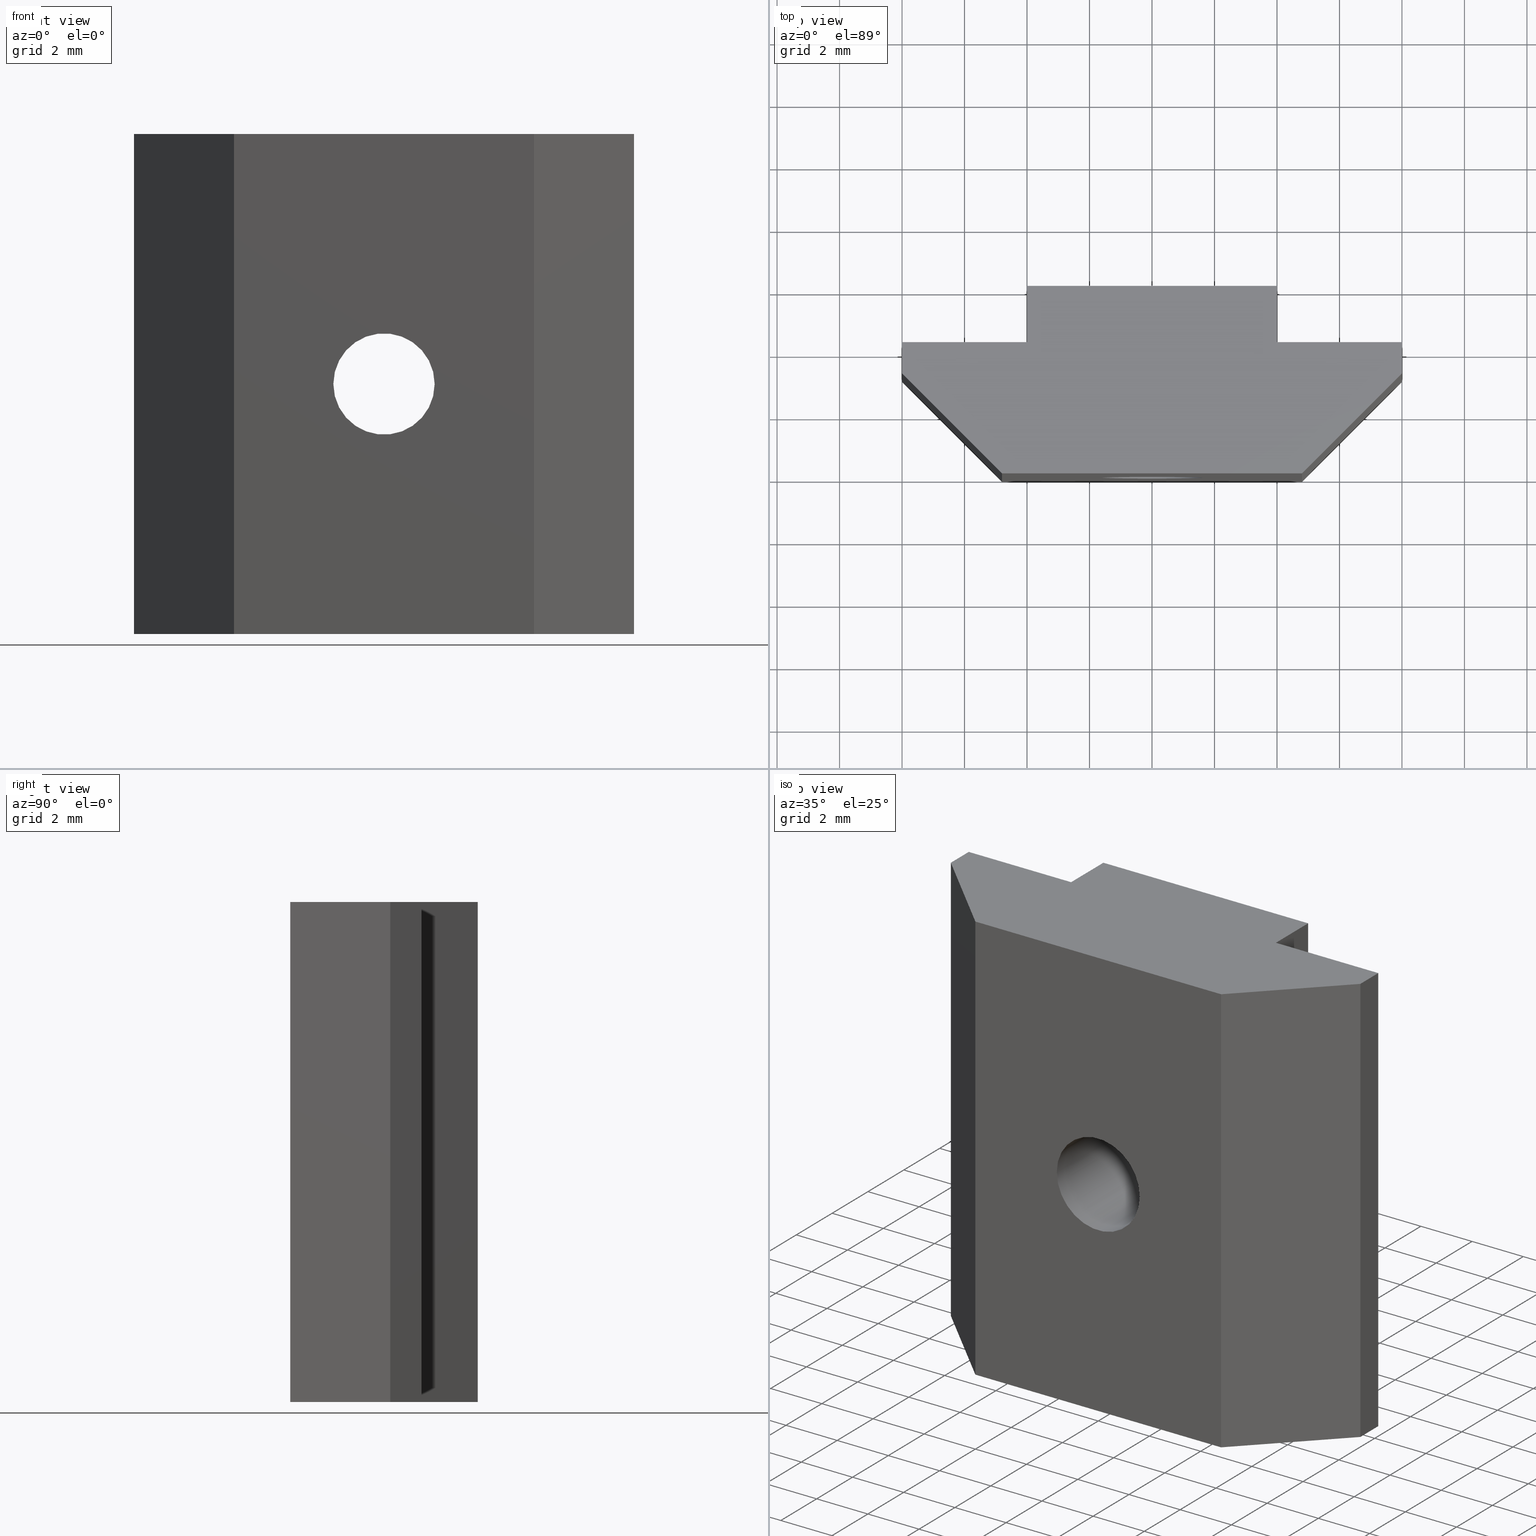
[diagram: canonical four-view strip — front | top / right | iso, engineering-drawing reading convention]
A machine part, canonical four-view strip (front | top / right | iso — engineering-drawing reading convention). The complete STEP part file that produces these views, byte-faithful:
ISO-10303-21;
HEADER;
/* Generated by software containing ST-Developer
 * from STEP Tools, Inc. (www.steptools.com) 
 */

FILE_DESCRIPTION(
/* description */ ('CURSORE M6 16X16 CAVA8 CON RISALTO'),
/* implementation_level */ '2;1');

FILE_NAME(
/* name */ 
'Q:\\Catalogo\\2_Accessori Dierre\\Per Download Web e catalogo cartace
o\\CATALOGO ELEMENTI ASSEMBLAGGIO\\PAGINA 12\\DDDCU0000092.stp',
/* time_stamp */ '2018-03-27T09:06:13+02:00',
/* author */ ('fzagni'),
/* organization */ (''),
/* preprocessor_version */ 'ST-DEVELOPER v16.1',
/* originating_system */ 'Autodesk Inventor 2016',
/* authorisation */ '');

FILE_SCHEMA (('AUTOMOTIVE_DESIGN { 1 0 10303 214 3 1 1 }'));
ENDSEC;

DATA;
#10=MECHANICAL_DESIGN_GEOMETRIC_PRESENTATION_REPRESENTATION('',(#13),#403);
#11=SHAPE_REPRESENTATION_RELATIONSHIP('SRR','None',#412,#12);
#12=ADVANCED_BREP_SHAPE_REPRESENTATION('',(#14),#402);
#13=STYLED_ITEM('',(#421),#14);
#14=MANIFOLD_SOLID_BREP('Solido1',#253);
#15=LINE('',#341,#45);
#16=LINE('',#343,#46);
#17=LINE('',#345,#47);
#18=LINE('',#346,#48);
#19=LINE('',#349,#49);
#20=LINE('',#351,#50);
#21=LINE('',#352,#51);
#22=LINE('',#355,#52);
#23=LINE('',#357,#53);
#24=LINE('',#358,#54);
#25=LINE('',#361,#55);
#26=LINE('',#363,#56);
#27=LINE('',#364,#57);
#28=LINE('',#367,#58);
#29=LINE('',#369,#59);
#30=LINE('',#370,#60);
#31=LINE('',#373,#61);
#32=LINE('',#375,#62);
#33=LINE('',#376,#63);
#34=LINE('',#379,#64);
#35=LINE('',#381,#65);
#36=LINE('',#382,#66);
#37=LINE('',#385,#67);
#38=LINE('',#387,#68);
#39=LINE('',#388,#69);
#40=LINE('',#391,#70);
#41=LINE('',#393,#71);
#42=LINE('',#394,#72);
#43=LINE('',#396,#73);
#44=LINE('',#397,#74);
#45=VECTOR('',#280,1.8);
#46=VECTOR('',#281,16.);
#47=VECTOR('',#282,1.8);
#48=VECTOR('',#283,16.);
#49=VECTOR('',#286,4.);
#50=VECTOR('',#287,4.);
#51=VECTOR('',#288,16.);
#52=VECTOR('',#291,0.999999999999998);
#53=VECTOR('',#292,0.999999999999998);
#54=VECTOR('',#293,16.);
#55=VECTOR('',#296,4.52548339959391);
#56=VECTOR('',#297,4.52548339959391);
#57=VECTOR('',#298,16.);
#58=VECTOR('',#301,9.6);
#59=VECTOR('',#302,9.6);
#60=VECTOR('',#303,16.);
#61=VECTOR('',#306,4.52548339959391);
#62=VECTOR('',#307,4.52548339959391);
#63=VECTOR('',#308,16.);
#64=VECTOR('',#311,1.);
#65=VECTOR('',#312,1.);
#66=VECTOR('',#313,16.);
#67=VECTOR('',#316,4.);
#68=VECTOR('',#317,4.);
#69=VECTOR('',#318,16.);
#70=VECTOR('',#321,1.8);
#71=VECTOR('',#322,1.8);
#72=VECTOR('',#323,16.);
#73=VECTOR('',#326,8.);
#74=VECTOR('',#327,8.);
#75=PLANE('',#258);
#76=PLANE('',#259);
#77=PLANE('',#260);
#78=PLANE('',#261);
#79=PLANE('',#262);
#80=PLANE('',#263);
#81=PLANE('',#264);
#82=PLANE('',#265);
#83=PLANE('',#266);
#84=PLANE('',#267);
#85=PLANE('',#268);
#86=PLANE('',#269);
#87=FACE_BOUND('',#104,.T.);
#88=FACE_BOUND('',#110,.T.);
#89=FACE_BOUND('',#116,.T.);
#90=FACE_OUTER_BOUND('',#103,.T.);
#91=FACE_OUTER_BOUND('',#105,.T.);
#92=FACE_OUTER_BOUND('',#106,.T.);
#93=FACE_OUTER_BOUND('',#107,.T.);
#94=FACE_OUTER_BOUND('',#108,.T.);
#95=FACE_OUTER_BOUND('',#109,.T.);
#96=FACE_OUTER_BOUND('',#111,.T.);
#97=FACE_OUTER_BOUND('',#112,.T.);
#98=FACE_OUTER_BOUND('',#113,.T.);
#99=FACE_OUTER_BOUND('',#114,.T.);
#100=FACE_OUTER_BOUND('',#115,.T.);
#101=FACE_OUTER_BOUND('',#117,.T.);
#102=FACE_OUTER_BOUND('',#118,.T.);
#103=EDGE_LOOP('',(#175));
#104=EDGE_LOOP('',(#176));
#105=EDGE_LOOP('',(#177,#178,#179,#180));
#106=EDGE_LOOP('',(#181,#182,#183,#184));
#107=EDGE_LOOP('',(#185,#186,#187,#188));
#108=EDGE_LOOP('',(#189,#190,#191,#192));
#109=EDGE_LOOP('',(#193,#194,#195,#196));
#110=EDGE_LOOP('',(#197));
#111=EDGE_LOOP('',(#198,#199,#200,#201));
#112=EDGE_LOOP('',(#202,#203,#204,#205));
#113=EDGE_LOOP('',(#206,#207,#208,#209));
#114=EDGE_LOOP('',(#210,#211,#212,#213));
#115=EDGE_LOOP('',(#214,#215,#216,#217));
#116=EDGE_LOOP('',(#218));
#117=EDGE_LOOP('',(#219,#220,#221,#222,#223,#224,#225,#226,#227,#228));
#118=EDGE_LOOP('',(#229,#230,#231,#232,#233,#234,#235,#236,#237,#238));
#119=CIRCLE('',#256,1.621);
#120=CIRCLE('',#257,1.621);
#121=VERTEX_POINT('',#334);
#122=VERTEX_POINT('',#336);
#123=VERTEX_POINT('',#339);
#124=VERTEX_POINT('',#340);
#125=VERTEX_POINT('',#342);
#126=VERTEX_POINT('',#344);
#127=VERTEX_POINT('',#348);
#128=VERTEX_POINT('',#350);
#129=VERTEX_POINT('',#354);
#130=VERTEX_POINT('',#356);
#131=VERTEX_POINT('',#360);
#132=VERTEX_POINT('',#362);
#133=VERTEX_POINT('',#366);
#134=VERTEX_POINT('',#368);
#135=VERTEX_POINT('',#372);
#136=VERTEX_POINT('',#374);
#137=VERTEX_POINT('',#378);
#138=VERTEX_POINT('',#380);
#139=VERTEX_POINT('',#384);
#140=VERTEX_POINT('',#386);
#141=VERTEX_POINT('',#390);
#142=VERTEX_POINT('',#392);
#143=EDGE_CURVE('',#121,#121,#119,.T.);
#144=EDGE_CURVE('',#122,#122,#120,.T.);
#145=EDGE_CURVE('',#123,#124,#15,.T.);
#146=EDGE_CURVE('',#123,#125,#16,.T.);
#147=EDGE_CURVE('',#126,#125,#17,.T.);
#148=EDGE_CURVE('',#124,#126,#18,.T.);
#149=EDGE_CURVE('',#124,#127,#19,.T.);
#150=EDGE_CURVE('',#128,#126,#20,.T.);
#151=EDGE_CURVE('',#127,#128,#21,.T.);
#152=EDGE_CURVE('',#127,#129,#22,.T.);
#153=EDGE_CURVE('',#130,#128,#23,.T.);
#154=EDGE_CURVE('',#129,#130,#24,.T.);
#155=EDGE_CURVE('',#129,#131,#25,.T.);
#156=EDGE_CURVE('',#132,#130,#26,.T.);
#157=EDGE_CURVE('',#131,#132,#27,.T.);
#158=EDGE_CURVE('',#131,#133,#28,.T.);
#159=EDGE_CURVE('',#134,#132,#29,.T.);
#160=EDGE_CURVE('',#133,#134,#30,.T.);
#161=EDGE_CURVE('',#133,#135,#31,.T.);
#162=EDGE_CURVE('',#136,#134,#32,.T.);
#163=EDGE_CURVE('',#135,#136,#33,.T.);
#164=EDGE_CURVE('',#135,#137,#34,.T.);
#165=EDGE_CURVE('',#138,#136,#35,.T.);
#166=EDGE_CURVE('',#137,#138,#36,.T.);
#167=EDGE_CURVE('',#137,#139,#37,.T.);
#168=EDGE_CURVE('',#140,#138,#38,.T.);
#169=EDGE_CURVE('',#139,#140,#39,.T.);
#170=EDGE_CURVE('',#139,#141,#40,.T.);
#171=EDGE_CURVE('',#142,#140,#41,.T.);
#172=EDGE_CURVE('',#141,#142,#42,.T.);
#173=EDGE_CURVE('',#141,#123,#43,.T.);
#174=EDGE_CURVE('',#125,#142,#44,.T.);
#175=ORIENTED_EDGE('',*,*,#143,.F.);
#176=ORIENTED_EDGE('',*,*,#144,.F.);
#177=ORIENTED_EDGE('',*,*,#145,.F.);
#178=ORIENTED_EDGE('',*,*,#146,.T.);
#179=ORIENTED_EDGE('',*,*,#147,.F.);
#180=ORIENTED_EDGE('',*,*,#148,.F.);
#181=ORIENTED_EDGE('',*,*,#149,.F.);
#182=ORIENTED_EDGE('',*,*,#148,.T.);
#183=ORIENTED_EDGE('',*,*,#150,.F.);
#184=ORIENTED_EDGE('',*,*,#151,.F.);
#185=ORIENTED_EDGE('',*,*,#152,.F.);
#186=ORIENTED_EDGE('',*,*,#151,.T.);
#187=ORIENTED_EDGE('',*,*,#153,.F.);
#188=ORIENTED_EDGE('',*,*,#154,.F.);
#189=ORIENTED_EDGE('',*,*,#155,.F.);
#190=ORIENTED_EDGE('',*,*,#154,.T.);
#191=ORIENTED_EDGE('',*,*,#156,.F.);
#192=ORIENTED_EDGE('',*,*,#157,.F.);
#193=ORIENTED_EDGE('',*,*,#158,.F.);
#194=ORIENTED_EDGE('',*,*,#157,.T.);
#195=ORIENTED_EDGE('',*,*,#159,.F.);
#196=ORIENTED_EDGE('',*,*,#160,.F.);
#197=ORIENTED_EDGE('',*,*,#143,.T.);
#198=ORIENTED_EDGE('',*,*,#161,.F.);
#199=ORIENTED_EDGE('',*,*,#160,.T.);
#200=ORIENTED_EDGE('',*,*,#162,.F.);
#201=ORIENTED_EDGE('',*,*,#163,.F.);
#202=ORIENTED_EDGE('',*,*,#164,.F.);
#203=ORIENTED_EDGE('',*,*,#163,.T.);
#204=ORIENTED_EDGE('',*,*,#165,.F.);
#205=ORIENTED_EDGE('',*,*,#166,.F.);
#206=ORIENTED_EDGE('',*,*,#167,.F.);
#207=ORIENTED_EDGE('',*,*,#166,.T.);
#208=ORIENTED_EDGE('',*,*,#168,.F.);
#209=ORIENTED_EDGE('',*,*,#169,.F.);
#210=ORIENTED_EDGE('',*,*,#170,.F.);
#211=ORIENTED_EDGE('',*,*,#169,.T.);
#212=ORIENTED_EDGE('',*,*,#171,.F.);
#213=ORIENTED_EDGE('',*,*,#172,.F.);
#214=ORIENTED_EDGE('',*,*,#173,.F.);
#215=ORIENTED_EDGE('',*,*,#172,.T.);
#216=ORIENTED_EDGE('',*,*,#174,.F.);
#217=ORIENTED_EDGE('',*,*,#146,.F.);
#218=ORIENTED_EDGE('',*,*,#144,.T.);
#219=ORIENTED_EDGE('',*,*,#173,.T.);
#220=ORIENTED_EDGE('',*,*,#145,.T.);
#221=ORIENTED_EDGE('',*,*,#149,.T.);
#222=ORIENTED_EDGE('',*,*,#152,.T.);
#223=ORIENTED_EDGE('',*,*,#155,.T.);
#224=ORIENTED_EDGE('',*,*,#158,.T.);
#225=ORIENTED_EDGE('',*,*,#161,.T.);
#226=ORIENTED_EDGE('',*,*,#164,.T.);
#227=ORIENTED_EDGE('',*,*,#167,.T.);
#228=ORIENTED_EDGE('',*,*,#170,.T.);
#229=ORIENTED_EDGE('',*,*,#174,.T.);
#230=ORIENTED_EDGE('',*,*,#171,.T.);
#231=ORIENTED_EDGE('',*,*,#168,.T.);
#232=ORIENTED_EDGE('',*,*,#165,.T.);
#233=ORIENTED_EDGE('',*,*,#162,.T.);
#234=ORIENTED_EDGE('',*,*,#159,.T.);
#235=ORIENTED_EDGE('',*,*,#156,.T.);
#236=ORIENTED_EDGE('',*,*,#153,.T.);
#237=ORIENTED_EDGE('',*,*,#150,.T.);
#238=ORIENTED_EDGE('',*,*,#147,.T.);
#239=CYLINDRICAL_SURFACE('',#255,1.621);
#240=ADVANCED_FACE('',(#90,#87),#239,.F.);
#241=ADVANCED_FACE('',(#91),#75,.T.);
#242=ADVANCED_FACE('',(#92),#76,.T.);
#243=ADVANCED_FACE('',(#93),#77,.T.);
#244=ADVANCED_FACE('',(#94),#78,.T.);
#245=ADVANCED_FACE('',(#95,#88),#79,.T.);
#246=ADVANCED_FACE('',(#96),#80,.T.);
#247=ADVANCED_FACE('',(#97),#81,.T.);
#248=ADVANCED_FACE('',(#98),#82,.T.);
#249=ADVANCED_FACE('',(#99),#83,.T.);
#250=ADVANCED_FACE('',(#100,#89),#84,.T.);
#251=ADVANCED_FACE('',(#101),#85,.F.);
#252=ADVANCED_FACE('',(#102),#86,.T.);
#253=CLOSED_SHELL('',(#240,#241,#242,#243,#244,#245,#246,#247,#248,#249,
#250,#251,#252));
#254=AXIS2_PLACEMENT_3D('placement',#332,#270,#271);
#255=AXIS2_PLACEMENT_3D('',#333,#272,#273);
#256=AXIS2_PLACEMENT_3D('',#335,#274,#275);
#257=AXIS2_PLACEMENT_3D('',#337,#276,#277);
#258=AXIS2_PLACEMENT_3D('',#338,#278,#279);
#259=AXIS2_PLACEMENT_3D('',#347,#284,#285);
#260=AXIS2_PLACEMENT_3D('',#353,#289,#290);
#261=AXIS2_PLACEMENT_3D('',#359,#294,#295);
#262=AXIS2_PLACEMENT_3D('',#365,#299,#300);
#263=AXIS2_PLACEMENT_3D('',#371,#304,#305);
#264=AXIS2_PLACEMENT_3D('',#377,#309,#310);
#265=AXIS2_PLACEMENT_3D('',#383,#314,#315);
#266=AXIS2_PLACEMENT_3D('',#389,#319,#320);
#267=AXIS2_PLACEMENT_3D('',#395,#324,#325);
#268=AXIS2_PLACEMENT_3D('',#398,#328,#329);
#269=AXIS2_PLACEMENT_3D('',#399,#330,#331);
#270=DIRECTION('axis',(0.,0.,1.));
#271=DIRECTION('refdir',(1.,0.,0.));
#272=DIRECTION('center_axis',(0.,1.,0.));
#273=DIRECTION('ref_axis',(1.,0.,0.));
#274=DIRECTION('center_axis',(1.28395329625816E-32,1.,0.));
#275=DIRECTION('ref_axis',(1.,0.,0.));
#276=DIRECTION('center_axis',(0.,-1.,0.));
#277=DIRECTION('ref_axis',(1.,0.,0.));
#278=DIRECTION('center_axis',(1.,0.,0.));
#279=DIRECTION('ref_axis',(0.,1.,0.));
#280=DIRECTION('',(0.,-1.,0.));
#281=DIRECTION('',(0.,0.,1.));
#282=DIRECTION('',(0.,1.,0.));
#283=DIRECTION('',(0.,0.,1.));
#284=DIRECTION('center_axis',(0.,1.,0.));
#285=DIRECTION('ref_axis',(-1.,0.,0.));
#286=DIRECTION('',(1.,0.,0.));
#287=DIRECTION('',(-1.,0.,0.));
#288=DIRECTION('',(0.,0.,1.));
#289=DIRECTION('center_axis',(1.,-1.11022302462516E-15,0.));
#290=DIRECTION('ref_axis',(1.06581410364015E-15,1.,0.));
#291=DIRECTION('',(-1.11022302462516E-15,-1.,0.));
#292=DIRECTION('',(1.11022302462516E-15,1.,0.));
#293=DIRECTION('',(0.,0.,1.));
#294=DIRECTION('center_axis',(0.707106781186548,-0.707106781186547,0.));
#295=DIRECTION('ref_axis',(0.707106781186547,0.707106781186548,0.));
#296=DIRECTION('',(-0.707106781186547,-0.707106781186548,0.));
#297=DIRECTION('',(0.707106781186547,0.707106781186548,0.));
#298=DIRECTION('',(0.,0.,1.));
#299=DIRECTION('center_axis',(-1.28395329625816E-32,-1.,0.));
#300=DIRECTION('ref_axis',(1.,-1.4791141972894E-32,0.));
#301=DIRECTION('',(-1.,1.28395329625816E-32,0.));
#302=DIRECTION('',(1.,-1.28395329625816E-32,0.));
#303=DIRECTION('',(0.,0.,1.));
#304=DIRECTION('center_axis',(-0.707106781186547,-0.707106781186548,0.));
#305=DIRECTION('ref_axis',(0.707106781186548,-0.707106781186547,0.));
#306=DIRECTION('',(-0.707106781186548,0.707106781186547,0.));
#307=DIRECTION('',(0.707106781186548,-0.707106781186547,0.));
#308=DIRECTION('',(0.,0.,1.));
#309=DIRECTION('center_axis',(-1.,0.,0.));
#310=DIRECTION('ref_axis',(0.,-1.,0.));
#311=DIRECTION('',(0.,1.,0.));
#312=DIRECTION('',(0.,-1.,0.));
#313=DIRECTION('',(0.,0.,1.));
#314=DIRECTION('center_axis',(0.,1.,0.));
#315=DIRECTION('ref_axis',(-1.,0.,0.));
#316=DIRECTION('',(1.,0.,0.));
#317=DIRECTION('',(-1.,0.,0.));
#318=DIRECTION('',(0.,0.,1.));
#319=DIRECTION('center_axis',(-1.,0.,0.));
#320=DIRECTION('ref_axis',(0.,-1.,0.));
#321=DIRECTION('',(0.,1.,0.));
#322=DIRECTION('',(0.,-1.,0.));
#323=DIRECTION('',(0.,0.,1.));
#324=DIRECTION('center_axis',(0.,1.,0.));
#325=DIRECTION('ref_axis',(-1.,0.,0.));
#326=DIRECTION('',(1.,0.,0.));
#327=DIRECTION('',(-1.,0.,0.));
#328=DIRECTION('center_axis',(0.,0.,1.));
#329=DIRECTION('ref_axis',(1.,0.,0.));
#330=DIRECTION('center_axis',(0.,0.,1.));
#331=DIRECTION('ref_axis',(1.,0.,0.));
#332=CARTESIAN_POINT('',(0.,0.,0.));
#333=CARTESIAN_POINT('Origin',(0.,-17.4093998214393,8.));
#334=CARTESIAN_POINT('',(-1.621,0.,8.));
#335=CARTESIAN_POINT('Origin',(0.,0.,8.));
#336=CARTESIAN_POINT('',(1.621,6.,8.));
#337=CARTESIAN_POINT('Origin',(0.,6.,8.));
#338=CARTESIAN_POINT('Origin',(4.,4.2,0.));
#339=CARTESIAN_POINT('',(4.,6.,0.));
#340=CARTESIAN_POINT('',(4.,4.2,0.));
#341=CARTESIAN_POINT('',(4.,6.,0.));
#342=CARTESIAN_POINT('',(4.,6.,16.));
#343=CARTESIAN_POINT('',(4.,6.,0.));
#344=CARTESIAN_POINT('',(4.,4.2,16.));
#345=CARTESIAN_POINT('',(4.,6.,16.));
#346=CARTESIAN_POINT('',(4.,4.2,0.));
#347=CARTESIAN_POINT('Origin',(8.,4.2,0.));
#348=CARTESIAN_POINT('',(8.,4.2,0.));
#349=CARTESIAN_POINT('',(4.,4.2,0.));
#350=CARTESIAN_POINT('',(8.,4.2,16.));
#351=CARTESIAN_POINT('',(4.,4.2,16.));
#352=CARTESIAN_POINT('',(8.,4.2,0.));
#353=CARTESIAN_POINT('Origin',(8.,3.2,0.));
#354=CARTESIAN_POINT('',(8.,3.2,0.));
#355=CARTESIAN_POINT('',(8.,4.2,0.));
#356=CARTESIAN_POINT('',(8.,3.2,16.));
#357=CARTESIAN_POINT('',(8.,4.2,16.));
#358=CARTESIAN_POINT('',(8.,3.2,0.));
#359=CARTESIAN_POINT('Origin',(4.8,-1.11022302462516E-15,0.));
#360=CARTESIAN_POINT('',(4.8,-2.78031002632485E-16,0.));
#361=CARTESIAN_POINT('',(8.,3.2,0.));
#362=CARTESIAN_POINT('',(4.8,0.,16.));
#363=CARTESIAN_POINT('',(8.,3.2,16.));
#364=CARTESIAN_POINT('',(4.8,-2.78031002632485E-16,0.));
#365=CARTESIAN_POINT('Origin',(-4.8,-2.78031002632485E-16,0.));
#366=CARTESIAN_POINT('',(-4.8,-2.78031002632485E-16,0.));
#367=CARTESIAN_POINT('',(4.8,-2.78031002632485E-16,0.));
#368=CARTESIAN_POINT('',(-4.8,0.,16.));
#369=CARTESIAN_POINT('',(4.8,-2.78031002632485E-16,16.));
#370=CARTESIAN_POINT('',(-4.8,-2.78031002632485E-16,0.));
#371=CARTESIAN_POINT('Origin',(-8.,3.2,0.));
#372=CARTESIAN_POINT('',(-8.,3.2,0.));
#373=CARTESIAN_POINT('',(-4.8,-2.78031002632485E-16,0.));
#374=CARTESIAN_POINT('',(-8.,3.2,16.));
#375=CARTESIAN_POINT('',(-4.8,-2.78031002632485E-16,16.));
#376=CARTESIAN_POINT('',(-8.,3.2,0.));
#377=CARTESIAN_POINT('Origin',(-8.,4.2,0.));
#378=CARTESIAN_POINT('',(-8.,4.2,0.));
#379=CARTESIAN_POINT('',(-8.,3.2,0.));
#380=CARTESIAN_POINT('',(-8.,4.2,16.));
#381=CARTESIAN_POINT('',(-8.,3.2,16.));
#382=CARTESIAN_POINT('',(-8.,4.2,0.));
#383=CARTESIAN_POINT('Origin',(-4.,4.2,0.));
#384=CARTESIAN_POINT('',(-4.,4.2,0.));
#385=CARTESIAN_POINT('',(-8.,4.2,0.));
#386=CARTESIAN_POINT('',(-4.,4.2,16.));
#387=CARTESIAN_POINT('',(-8.,4.2,16.));
#388=CARTESIAN_POINT('',(-4.,4.2,0.));
#389=CARTESIAN_POINT('Origin',(-4.,6.,0.));
#390=CARTESIAN_POINT('',(-4.,6.,0.));
#391=CARTESIAN_POINT('',(-4.,4.2,0.));
#392=CARTESIAN_POINT('',(-4.,6.,16.));
#393=CARTESIAN_POINT('',(-4.,4.2,16.));
#394=CARTESIAN_POINT('',(-4.,6.,0.));
#395=CARTESIAN_POINT('Origin',(4.,6.,0.));
#396=CARTESIAN_POINT('',(-4.,6.,0.));
#397=CARTESIAN_POINT('',(-4.,6.,16.));
#398=CARTESIAN_POINT('Origin',(-4.13737773118865E-16,3.02704646789153,0.));
#399=CARTESIAN_POINT('Origin',(-5.55111512312578E-16,3.02704646789153,16.));
#400=UNCERTAINTY_MEASURE_WITH_UNIT(LENGTH_MEASURE(0.01),#404,
'DISTANCE_ACCURACY_VALUE',
'Maximum model space distance between geometric entities at asserted c
onnectivities');
#401=UNCERTAINTY_MEASURE_WITH_UNIT(LENGTH_MEASURE(1.E-6),#404,
'DISTANCE_ACCURACY_VALUE',
'Maximum model space distance between geometric entities at asserted c
onnectivities');
#402=(
GEOMETRIC_REPRESENTATION_CONTEXT(3)
GLOBAL_UNCERTAINTY_ASSIGNED_CONTEXT((#400))
GLOBAL_UNIT_ASSIGNED_CONTEXT((#404,#407,#405))
REPRESENTATION_CONTEXT('','3D')
);
#403=(
GEOMETRIC_REPRESENTATION_CONTEXT(3)
GLOBAL_UNCERTAINTY_ASSIGNED_CONTEXT((#401))
GLOBAL_UNIT_ASSIGNED_CONTEXT((#404,#407,#405))
REPRESENTATION_CONTEXT('','3D')
);
#404=(
LENGTH_UNIT()
NAMED_UNIT(*)
SI_UNIT(.MILLI.,.METRE.)
);
#405=(
NAMED_UNIT(*)
SI_UNIT($,.STERADIAN.)
SOLID_ANGLE_UNIT()
);
#406=DIMENSIONAL_EXPONENTS(0.,0.,0.,0.,0.,0.,0.);
#407=(
CONVERSION_BASED_UNIT('degree',#409)
NAMED_UNIT(#406)
PLANE_ANGLE_UNIT()
);
#408=(
NAMED_UNIT(*)
PLANE_ANGLE_UNIT()
SI_UNIT($,.RADIAN.)
);
#409=PLANE_ANGLE_MEASURE_WITH_UNIT(PLANE_ANGLE_MEASURE(0.01745329252),#408);
#410=SHAPE_DEFINITION_REPRESENTATION(#411,#412);
#411=PRODUCT_DEFINITION_SHAPE('',$,#414);
#412=SHAPE_REPRESENTATION('',(#254),#402);
#413=PRODUCT_DEFINITION_CONTEXT('part definition',#418,'design');
#414=PRODUCT_DEFINITION('440000008476','440000008476',#415,#413);
#415=PRODUCT_DEFINITION_FORMATION('','A',#420);
#416=PRODUCT_RELATED_PRODUCT_CATEGORY('440000008476','440000008476',(#420));
#417=APPLICATION_PROTOCOL_DEFINITION('international standard',
'automotive_design',2009,#418);
#418=APPLICATION_CONTEXT(
'Core Data for Automotive Mechanical Design Process');
#419=PRODUCT_CONTEXT('part definition',#418,'mechanical');
#420=PRODUCT('440000008476','440000008476',$,(#419));
#421=PRESENTATION_STYLE_ASSIGNMENT((#422));
#422=SURFACE_STYLE_USAGE(.BOTH.,#423);
#423=SURFACE_SIDE_STYLE('',(#424));
#424=SURFACE_STYLE_FILL_AREA(#425);
#425=FILL_AREA_STYLE('',(#426));
#426=FILL_AREA_STYLE_COLOUR('',#427);
#427=COLOUR_RGB('',0.63921568627451,0.63921568627451,0.662745098039216);
ENDSEC;
END-ISO-10303-21;
